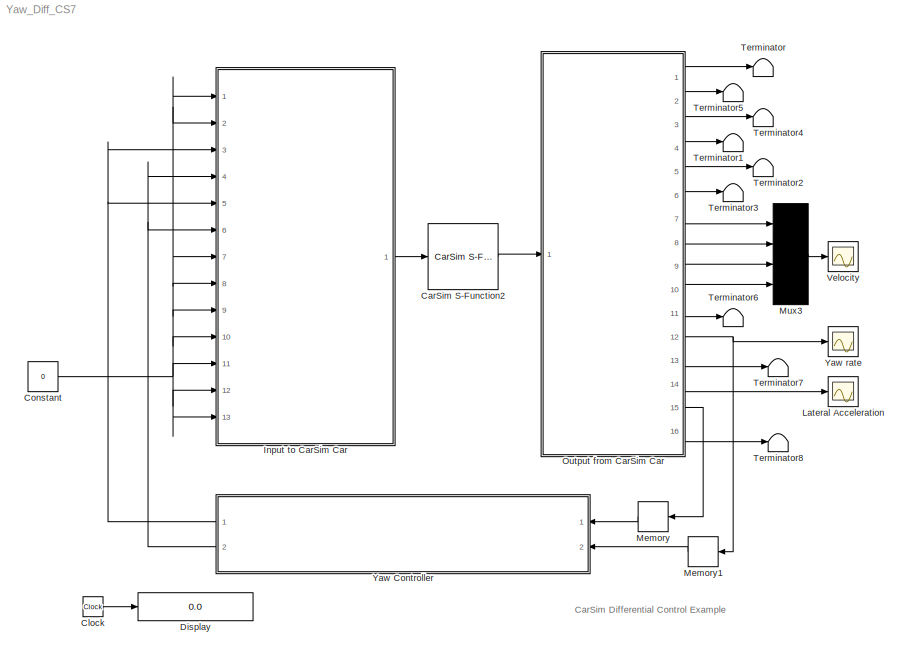
MODEL Yaw_Diff_CS7
KIND model
BLOCK [Reference] CarSim S-Function2  REF=Solver_SF/CarSim S-Function2
  AttributesFormatString = Vehicle Code: %<VehicleCode>
  Ports = [1, 1]
  Priority = 1
  SourceBlock = Solver_SF/CarSim S-Function2
  SourceType = Vehicle math model library
  VehicleCode = ???
BLOCK [Clock] Clock
  Decimation = 10
BLOCK [Constant] Constant
  OutDataType = sfix(16)
  OutScaling = 2^0
  Value = 0
BLOCK [Display] Display
  Decimation = 100
  Format = bank
  Lockdown = off
  Ports = [1]
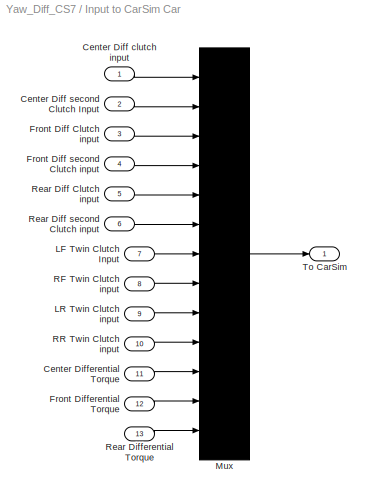
BLOCK [SubSystem] Input to CarSim Car
  FunctionWithSeparateData = off
  MaskHideContents = off
  MinAlgLoopOccurrences = off
  Ports = [13, 1]
  PropExecContextOutsideSubsystem = off
  RTWSystemCode = Auto
BLOCK [Inport] Input to CarSim Car/Center Diff clutch input
  IconDisplay = Port number
  OutDataType = sfix(16)
  OutScaling = 2^0
BLOCK [Inport] Input to CarSim Car/Center Diff second Clutch Input
  IconDisplay = Port number
  OutDataType = sfix(16)
  OutScaling = 2^0
  Port = 2
BLOCK [Inport] Input to CarSim Car/Center Differential Torque
  IconDisplay = Port number
  OutDataType = sfix(16)
  OutScaling = 2^0
  Port = 11
BLOCK [Inport] Input to CarSim Car/Front Diff Clutch input
  IconDisplay = Port number
  OutDataType = sfix(16)
  OutScaling = 2^0
  Port = 3
BLOCK [Inport] Input to CarSim Car/Front Diff second Clutch input
  IconDisplay = Port number
  OutDataType = sfix(16)
  OutScaling = 2^0
  Port = 4
BLOCK [Inport] Input to CarSim Car/Front Differential Torque 
  IconDisplay = Port number
  OutDataType = sfix(16)
  OutScaling = 2^0
  Port = 12
BLOCK [Inport] Input to CarSim Car/LF Twin Clutch Input
  IconDisplay = Port number
  OutDataType = sfix(16)
  OutScaling = 2^0
  Port = 7
BLOCK [Inport] Input to CarSim Car/LR Twin Clutch input
  IconDisplay = Port number
  OutDataType = sfix(16)
  OutScaling = 2^0
  Port = 9
BLOCK [Mux] Input to CarSim Car/Mux
  Inputs = 13
  Ports = [13, 1]
BLOCK [Inport] Input to CarSim Car/RF Twin Clutch input
  IconDisplay = Port number
  OutDataType = sfix(16)
  OutScaling = 2^0
  Port = 8
BLOCK [Inport] Input to CarSim Car/RR Twin Clutch input
  IconDisplay = Port number
  OutDataType = sfix(16)
  OutScaling = 2^0
  Port = 10
BLOCK [Inport] Input to CarSim Car/Rear Diff Clutch input
  IconDisplay = Port number
  OutDataType = sfix(16)
  OutScaling = 2^0
  Port = 5
BLOCK [Inport] Input to CarSim Car/Rear Diff second Clutch input
  IconDisplay = Port number
  OutDataType = sfix(16)
  OutScaling = 2^0
  Port = 6
BLOCK [Inport] Input to CarSim Car/Rear Differential Torque
  IconDisplay = Port number
  OutDataType = sfix(16)
  OutScaling = 2^0
  Port = 13
BLOCK [Outport] Input to CarSim Car/To CarSim
  IconDisplay = Port number
BLOCK [Scope] Lateral Acceleration
  DataFormat = Array
  Floating = off
  LimitDataPoints = off
  NumInputPorts = 1
  Ports = [1]
  SampleTime = 100
  TickLabels = on
  YMax = 1
  YMin = -0.5
  ZoomMode = yonly
BLOCK [Memory] Memory
BLOCK [Memory] Memory1
BLOCK [Mux] Mux3
  Ports = [4, 1]
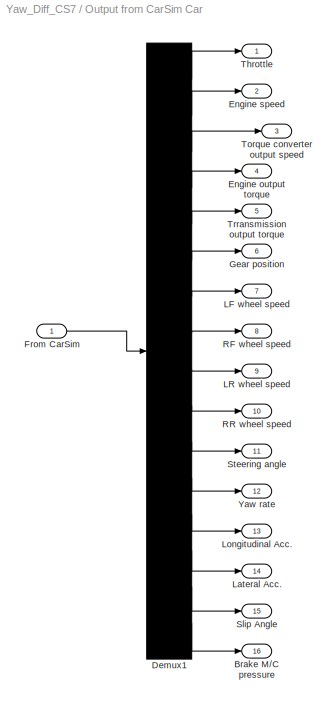
BLOCK [SubSystem] Output from CarSim Car
  FunctionWithSeparateData = off
  MaskHideContents = off
  MinAlgLoopOccurrences = off
  Ports = [1, 16]
  PropExecContextOutsideSubsystem = off
  RTWSystemCode = Auto
BLOCK [Outport] Output from CarSim Car/Brake M//C pressure
  IconDisplay = Port number
  Port = 16
BLOCK [Demux] Output from CarSim Car/Demux1
  Outputs = 16
  Ports = [1, 16]
BLOCK [Outport] Output from CarSim Car/Engine output torque
  IconDisplay = Port number
  Port = 4
BLOCK [Outport] Output from CarSim Car/Engine speed
  IconDisplay = Port number
  Port = 2
BLOCK [Inport] Output from CarSim Car/From CarSim
  IconDisplay = Port number
  OutDataType = sfix(16)
  OutScaling = 2^0
BLOCK [Outport] Output from CarSim Car/Gear position
  IconDisplay = Port number
  Port = 6
BLOCK [Outport] Output from CarSim Car/LF wheel speed
  IconDisplay = Port number
  Port = 7
BLOCK [Outport] Output from CarSim Car/LR wheel speed
  IconDisplay = Port number
  Port = 9
BLOCK [Outport] Output from CarSim Car/Lateral Acc.
  IconDisplay = Port number
  Port = 14
BLOCK [Outport] Output from CarSim Car/Longitudinal Acc.
  IconDisplay = Port number
  Port = 13
BLOCK [Outport] Output from CarSim Car/RF wheel speed
  IconDisplay = Port number
  Port = 8
BLOCK [Outport] Output from CarSim Car/RR wheel speed
  IconDisplay = Port number
  Port = 10
BLOCK [Outport] Output from CarSim Car/Slip Angle
  IconDisplay = Port number
  Port = 15
BLOCK [Outport] Output from CarSim Car/Steering angle
  IconDisplay = Port number
  Port = 11
BLOCK [Outport] Output from CarSim Car/Throttle
  IconDisplay = Port number
BLOCK [Outport] Output from CarSim Car/Torque converter output speed
  IconDisplay = Port number
  Port = 3
BLOCK [Outport] Output from CarSim Car/Trransmission output torque
  IconDisplay = Port number
  Port = 5
BLOCK [Outport] Output from CarSim Car/Yaw rate
  IconDisplay = Port number
  Port = 12
BLOCK [Terminator] Terminator
BLOCK [Terminator] Terminator1
BLOCK [Terminator] Terminator2
BLOCK [Terminator] Terminator3
BLOCK [Terminator] Terminator4
BLOCK [Terminator] Terminator5
BLOCK [Terminator] Terminator6
BLOCK [Terminator] Terminator7
BLOCK [Terminator] Terminator8
BLOCK [Scope] Velocity
  DataFormat = Array
  Floating = off
  LimitDataPoints = off
  NumInputPorts = 1
  Ports = [1]
  SampleTime = 100
  TickLabels = on
  YMax = 160
  YMin = 80
  ZoomMode = yonly
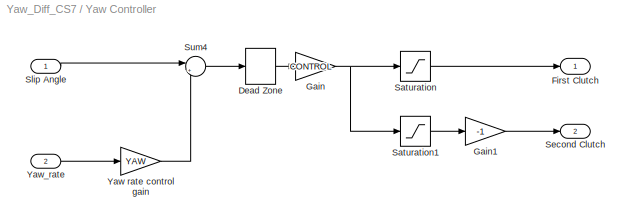
BLOCK [SubSystem] Yaw Controller
  FunctionWithSeparateData = off
  MaskCallbackString = |
  MaskEnableString = on,on
  MaskHideContents = off
  MaskIconFrame = on
  MaskIconOpaque = on
  MaskIconRotate = none
  MaskIconUnits = autoscale
  MaskPromptString = Yaw Control Gain (-)|Control Gain (-)
  MaskStyleString = edit,edit
  MaskToolTipString = on,on
  MaskTunableValueString = on,on
  MaskValueString = 0.06|0.72
  MaskVariables = YAW=@1;CONTROL=@2;
  MaskVisibilityString = on,on
  MinAlgLoopOccurrences = off
  Ports = [2, 2]
  PropExecContextOutsideSubsystem = off
  RTWSystemCode = Auto
BLOCK [DeadZone] Yaw Controller/Dead Zone
BLOCK [Outport] Yaw Controller/First Clutch
  IconDisplay = Port number
BLOCK [Gain] Yaw Controller/Gain
  Gain = CONTROL
  OutDataType = sfix(16)
  OutScaling = 2^0
  ParameterDataType = sfix(16)
  ParameterScaling = 2^0
BLOCK [Gain] Yaw Controller/Gain1
  Gain = -1
  OutDataType = sfix(16)
  OutScaling = 2^0
  ParameterDataType = sfix(16)
  ParameterScaling = 2^0
BLOCK [Saturate] Yaw Controller/Saturation
  LowerLimit = 0
  UpperLimit = 1
BLOCK [Saturate] Yaw Controller/Saturation1
  LowerLimit = -1
  UpperLimit = 0
BLOCK [Outport] Yaw Controller/Second Clutch
  IconDisplay = Port number
  Port = 2
BLOCK [Inport] Yaw Controller/Slip Angle
  IconDisplay = Port number
  OutDataType = sfix(16)
  OutScaling = 2^0
BLOCK [Sum] Yaw Controller/Sum4
  IconShape = round
  Inputs = |+-
  OutDataType = sfix(16)
  OutScaling = 2^0
  Ports = [2, 1]
BLOCK [Gain] Yaw Controller/Yaw rate control gain
  Gain = YAW
  OutDataType = sfix(16)
  OutScaling = 2^0
  ParameterDataType = sfix(16)
  ParameterScaling = 2^0
BLOCK [Inport] Yaw Controller/Yaw_rate
  IconDisplay = Port number
  OutDataType = sfix(16)
  OutScaling = 2^0
  Port = 2
BLOCK [Scope] Yaw rate
  DataFormat = Array
  Floating = off
  LimitDataPoints = off
  NumInputPorts = 1
  Ports = [1]
  SampleTime = 100
  TickLabels = on
  YMax = 20
  YMin = -20
  ZoomMode = yonly
ANNOTATION (root): CarSim Differential Control Example
LINE CarSim S-Function2:1 -> Output from CarSim Car:1
LINE Clock:1 -> Display:1
NET Constant:1 -> Input to CarSim Car:1, Input to CarSim Car:10, Input to CarSim Car:11, Input to CarSim Car:12, Input to CarSim Car:13, Input to CarSim Car:2, Input to CarSim Car:7, Input to CarSim Car:8, Input to CarSim Car:9
LINE Input to CarSim Car/Center Diff clutch input:1 -> Input to CarSim Car/Mux:1
LINE Input to CarSim Car/Center Diff second Clutch Input:1 -> Input to CarSim Car/Mux:2
LINE Input to CarSim Car/Center Differential Torque:1 -> Input to CarSim Car/Mux:11
LINE Input to CarSim Car/Front Diff Clutch input:1 -> Input to CarSim Car/Mux:3
LINE Input to CarSim Car/Front Diff second Clutch input:1 -> Input to CarSim Car/Mux:4
LINE Input to CarSim Car/Front Differential Torque :1 -> Input to CarSim Car/Mux:12
LINE Input to CarSim Car/LF Twin Clutch Input:1 -> Input to CarSim Car/Mux:7
LINE Input to CarSim Car/LR Twin Clutch input:1 -> Input to CarSim Car/Mux:9
LINE Input to CarSim Car/Mux:1 -> Input to CarSim Car/To CarSim:1
LINE Input to CarSim Car/RF Twin Clutch input:1 -> Input to CarSim Car/Mux:8
LINE Input to CarSim Car/RR Twin Clutch input:1 -> Input to CarSim Car/Mux:10
LINE Input to CarSim Car/Rear Diff Clutch input:1 -> Input to CarSim Car/Mux:5
LINE Input to CarSim Car/Rear Diff second Clutch input:1 -> Input to CarSim Car/Mux:6
LINE Input to CarSim Car/Rear Differential Torque:1 -> Input to CarSim Car/Mux:13
LINE Input to CarSim Car:1 -> CarSim S-Function2:1
LINE Memory1:1 -> Yaw Controller:2
LINE Memory:1 -> Yaw Controller:1
LINE Mux3:1 -> Velocity:1
LINE Output from CarSim Car/Demux1:1 -> Output from CarSim Car/Throttle:1
LINE Output from CarSim Car/Demux1:10 -> Output from CarSim Car/RR wheel speed:1
LINE Output from CarSim Car/Demux1:11 -> Output from CarSim Car/Steering angle:1
LINE Output from CarSim Car/Demux1:12 -> Output from CarSim Car/Yaw rate:1
LINE Output from CarSim Car/Demux1:13 -> Output from CarSim Car/Longitudinal Acc.:1
LINE Output from CarSim Car/Demux1:14 -> Output from CarSim Car/Lateral Acc.:1
LINE Output from CarSim Car/Demux1:15 -> Output from CarSim Car/Slip Angle:1
LINE Output from CarSim Car/Demux1:16 -> Output from CarSim Car/Brake M//C pressure:1
LINE Output from CarSim Car/Demux1:2 -> Output from CarSim Car/Engine speed:1
LINE Output from CarSim Car/Demux1:3 -> Output from CarSim Car/Torque converter output speed:1
LINE Output from CarSim Car/Demux1:4 -> Output from CarSim Car/Engine output torque:1
LINE Output from CarSim Car/Demux1:5 -> Output from CarSim Car/Trransmission output torque:1
LINE Output from CarSim Car/Demux1:6 -> Output from CarSim Car/Gear position:1
LINE Output from CarSim Car/Demux1:7 -> Output from CarSim Car/LF wheel speed:1
LINE Output from CarSim Car/Demux1:8 -> Output from CarSim Car/RF wheel speed:1
LINE Output from CarSim Car/Demux1:9 -> Output from CarSim Car/LR wheel speed:1
LINE Output from CarSim Car/From CarSim:1 -> Output from CarSim Car/Demux1:1
LINE Output from CarSim Car:1 -> Terminator:1
LINE Output from CarSim Car:10 -> Mux3:4
LINE Output from CarSim Car:11 -> Terminator6:1
NET Output from CarSim Car:12 -> Memory1:1, Yaw rate:1
LINE Output from CarSim Car:13 -> Terminator7:1
LINE Output from CarSim Car:14 -> Lateral Acceleration:1
LINE Output from CarSim Car:15 -> Memory:1
LINE Output from CarSim Car:16 -> Terminator8:1
LINE Output from CarSim Car:2 -> Terminator5:1
LINE Output from CarSim Car:3 -> Terminator4:1
LINE Output from CarSim Car:4 -> Terminator1:1
LINE Output from CarSim Car:5 -> Terminator2:1
LINE Output from CarSim Car:6 -> Terminator3:1
LINE Output from CarSim Car:7 -> Mux3:1
LINE Output from CarSim Car:8 -> Mux3:2
LINE Output from CarSim Car:9 -> Mux3:3
LINE Yaw Controller/Dead Zone:1 -> Yaw Controller/Gain:1
LINE Yaw Controller/Gain1:1 -> Yaw Controller/Second Clutch:1
NET Yaw Controller/Gain:1 -> Yaw Controller/Saturation1:1, Yaw Controller/Saturation:1
LINE Yaw Controller/Saturation1:1 -> Yaw Controller/Gain1:1
LINE Yaw Controller/Saturation:1 -> Yaw Controller/First Clutch:1
LINE Yaw Controller/Slip Angle:1 -> Yaw Controller/Sum4:1
LINE Yaw Controller/Sum4:1 -> Yaw Controller/Dead Zone:1
LINE Yaw Controller/Yaw rate control gain:1 -> Yaw Controller/Sum4:2
LINE Yaw Controller/Yaw_rate:1 -> Yaw Controller/Yaw rate control gain:1
NET Yaw Controller:1 -> Input to CarSim Car:3, Input to CarSim Car:5
NET Yaw Controller:2 -> Input to CarSim Car:4, Input to CarSim Car:6
note: NET lines group one-source signal fan-out (src -> all destinations, sorted); 1:1 wires keep LINE
